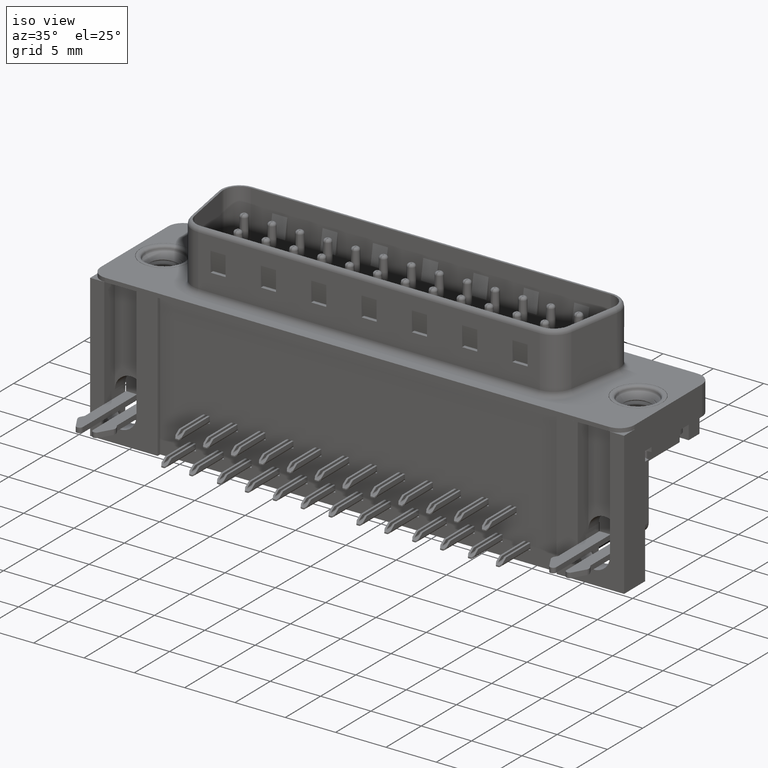
[diagram: clean part render]
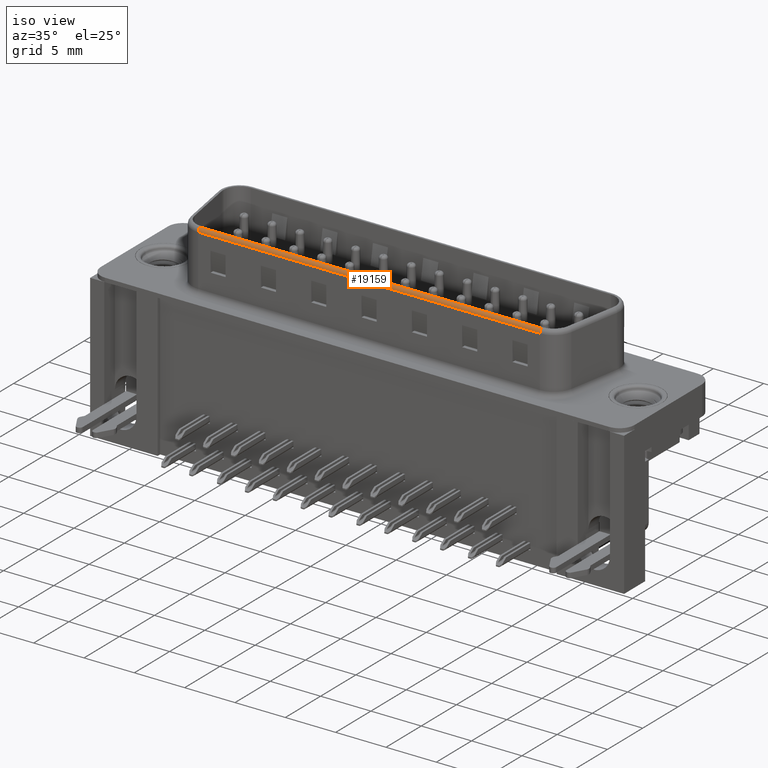
[diagram: same view with one face highlighted and labeled with its STEP entity id]
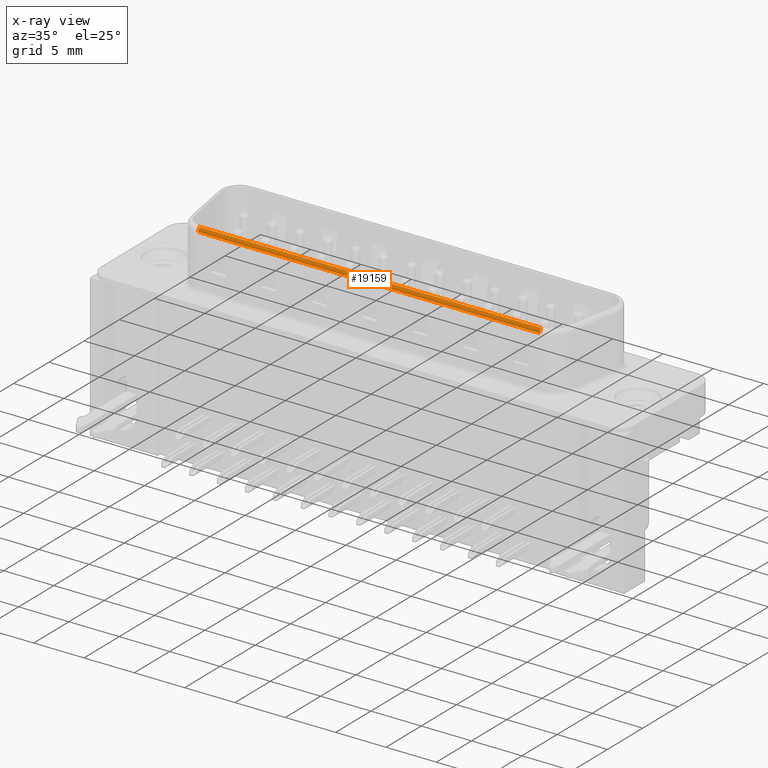
[diagram: x-ray of the same camera — body ghosted, the highlighted face saturated]
A machine part, iso view. The second image highlights one B-rep face of the part: STEP entity #19159.
The next image is the same camera in x-ray: the body ghosted, the highlighted face saturated — about 0% of this face is hidden behind the body in this view.
In plain terms, the highlighted cylindrical surface (edge-blend (fillet) strip) has radius 0.5 mm, axis along (1, 0, 0).
Its self-contained STEP definition (entity closure, byte-faithful):
#455 = ORIENTED_EDGE ( 'NONE', *, *, #18379, .F. ) ;
#788 = CIRCLE ( 'NONE', #8596, 0.5000000000000004441 ) ;
#1456 = DIRECTION ( 'NONE',  ( -1.000000000000000000, -0.0000000000000000000, -0.0000000000000000000 ) ) ;
#2516 = DIRECTION ( 'NONE',  ( 0.0000000000000000000, 0.0000000000000000000, -1.000000000000000000 ) ) ;
#2681 = CARTESIAN_POINT ( 'NONE',  ( 6.549847220455644603, -4.380000000000003446, 6.400000000000000355 ) ) ;
#3079 = CARTESIAN_POINT ( 'NONE',  ( 40.49015277954435277, -4.580000000000003624, 6.000000000000000000 ) ) ;
#3528 = VERTEX_POINT ( 'NONE', #5764 ) ;
#5233 = DIRECTION ( 'NONE',  ( 0.0000000000000000000, 0.0000000000000000000, -1.000000000000000000 ) ) ;
#5764 = CARTESIAN_POINT ( 'NONE',  ( 6.549847220455644603, -4.580000000000004512, 6.000000000000000000 ) ) ;
#5900 = AXIS2_PLACEMENT_3D ( 'NONE', #17410, #19473, #5233 ) ;
#5984 = VECTOR ( 'NONE', #9456, 1000.000000000000000 ) ;
#7026 = VERTEX_POINT ( 'NONE', #8880 ) ;
#8596 = AXIS2_PLACEMENT_3D ( 'NONE', #9029, #9257, #12855 ) ;
#8880 = CARTESIAN_POINT ( 'NONE',  ( 40.49015277954435277, -4.580000000000003624, 6.000000000000000000 ) ) ;
#9029 = CARTESIAN_POINT ( 'NONE',  ( 6.549847220455644603, -4.080000000000003624, 6.000000000000000000 ) ) ;
#9257 = DIRECTION ( 'NONE',  ( -1.000000000000000000, 0.0000000000000000000, 0.0000000000000000000 ) ) ;
#9456 = DIRECTION ( 'NONE',  ( 1.000000000000000000, 0.0000000000000000000, 0.0000000000000000000 ) ) ;
#10689 = CYLINDRICAL_SURFACE ( 'NONE', #20857, 0.5000000000000004441 ) ;
#11301 = CARTESIAN_POINT ( 'NONE',  ( 40.49015277954435277, -4.380000000000003446, 6.400000000000000355 ) ) ;
#11391 = CARTESIAN_POINT ( 'NONE',  ( 40.49015277954435277, -4.380000000000003446, 6.400000000000000355 ) ) ;
#12561 = CIRCLE ( 'NONE', #5900, 0.5000000000000004441 ) ;
#12855 = DIRECTION ( 'NONE',  ( 0.0000000000000000000, 0.0000000000000000000, 1.000000000000000000 ) ) ;
#13569 = EDGE_LOOP ( 'NONE', ( #16050, #15910, #455, #18150 ) ) ;
#15209 = EDGE_CURVE ( 'NONE', #15591, #18943, #16641, .T. ) ;
#15591 = VERTEX_POINT ( 'NONE', #2681 ) ;
#15812 = EDGE_CURVE ( 'NONE', #3528, #15591, #788, .T. ) ;
#15910 = ORIENTED_EDGE ( 'NONE', *, *, #15812, .F. ) ;
#16050 = ORIENTED_EDGE ( 'NONE', *, *, #15209, .F. ) ;
#16564 = FACE_OUTER_BOUND ( 'NONE', #13569, .T. ) ;
#16641 = LINE ( 'NONE', #11301, #5984 ) ;
#17410 = CARTESIAN_POINT ( 'NONE',  ( 40.49015277954435277, -4.080000000000003624, 6.000000000000000000 ) ) ;
#17987 = DIRECTION ( 'NONE',  ( 1.000000000000000000, 0.0000000000000000000, 0.0000000000000000000 ) ) ;
#18150 = ORIENTED_EDGE ( 'NONE', *, *, #21326, .F. ) ;
#18379 = EDGE_CURVE ( 'NONE', #7026, #3528, #18971, .T. ) ;
#18522 = CARTESIAN_POINT ( 'NONE',  ( 40.49015277954435277, -4.080000000000003624, 6.000000000000000000 ) ) ;
#18943 = VERTEX_POINT ( 'NONE', #11391 ) ;
#18971 = LINE ( 'NONE', #3079, #21221 ) ;
#19159 = ADVANCED_FACE ( 'NONE', ( #16564 ), #10689, .T. ) ;
#19473 = DIRECTION ( 'NONE',  ( 1.000000000000000000, 0.0000000000000000000, -0.0000000000000000000 ) ) ;
#20857 = AXIS2_PLACEMENT_3D ( 'NONE', #18522, #17987, #2516 ) ;
#21221 = VECTOR ( 'NONE', #1456, 1000.000000000000000 ) ;
#21326 = EDGE_CURVE ( 'NONE', #18943, #7026, #12561, .T. ) ;